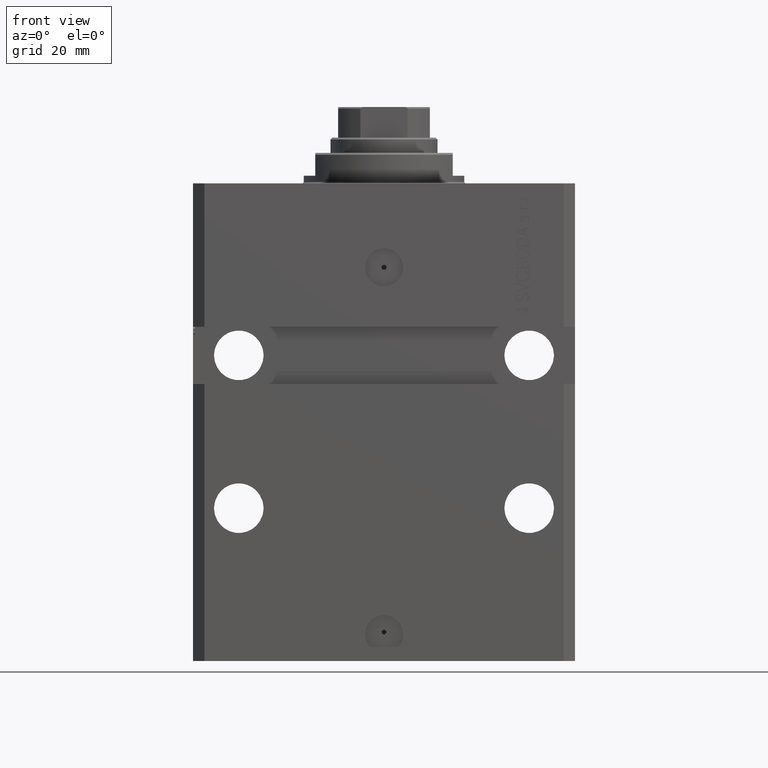
[diagram: clean part render]
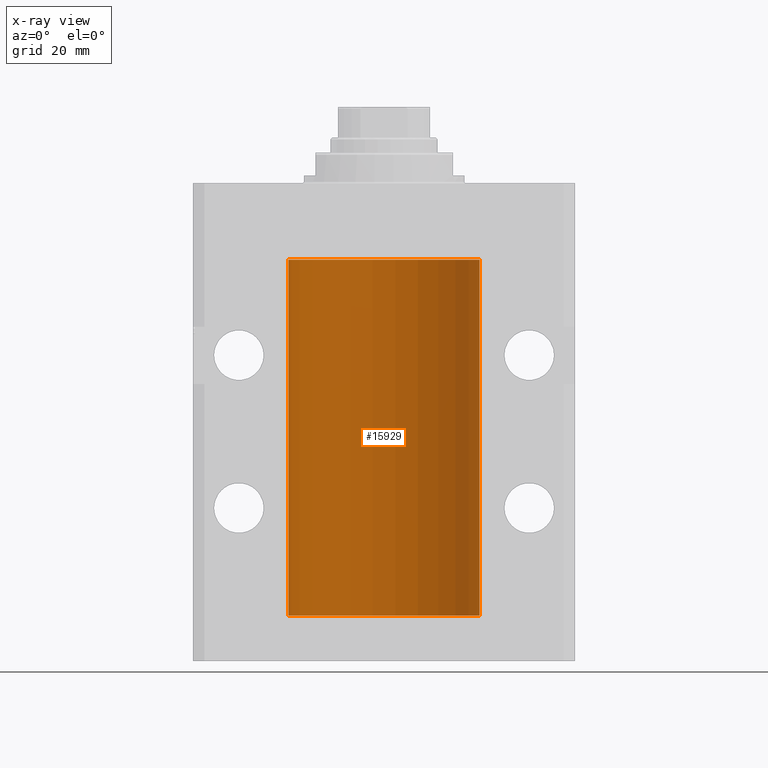
[diagram: x-ray — body ghosted, one internal face saturated and labeled with its STEP entity id]
A machine part, front view, then the same camera in x-ray: the body is ghosted and one INTERNAL B-rep face — a face not visible from any outside direction — is saturated and labeled: STEP entity #15929.
In plain terms, the highlighted cylindrical surface (partial cylindrical patch) has radius 25 mm, axis along (0, 0, 1).
Its self-contained STEP definition (entity closure, byte-faithful):
#383 = DIRECTION ( 'NONE',  ( 1.000000000000000000, 0.000000000000000000, 0.000000000000000000 ) ) ;
#386 = VECTOR ( 'NONE', #2446, 1000.000000000000000 ) ;
#418 = ORIENTED_EDGE ( 'NONE', *, *, #6431, .T. ) ;
#796 = DIRECTION ( 'NONE',  ( -0.000000000000000000, -0.000000000000000000, 1.000000000000000000 ) ) ;
#1643 = CARTESIAN_POINT ( 'NONE',  ( -24.99812965334069759, 0.3150303239408709932, -109.9540190183167852 ) ) ;
#2097 = CARTESIAN_POINT ( 'NONE',  ( -24.99218483271614843, 0.6250578298876445782, -110.6628443277814426 ) ) ;
#2446 = DIRECTION ( 'NONE',  ( -0.000000000000000000, -0.000000000000000000, 1.000000000000000000 ) ) ;
#2858 = CARTESIAN_POINT ( 'NONE',  ( -24.99812965334069403, 0.3150303239408847600, -24.45401901831676383 ) ) ;
#4022 = CIRCLE ( 'NONE', #32564, 25.00000000000000000 ) ;
#4046 = CARTESIAN_POINT ( 'NONE',  ( 0.000000000000000000, 0.000000000000000000, -20.00000000000000355 ) ) ;
#4861 = CARTESIAN_POINT ( 'NONE',  ( -24.99405295648007908, 0.5573304927633258021, -110.1734883293366920 ) ) ;
#5092 = CARTESIAN_POINT ( 'NONE',  ( -24.99402840204668408, 0.5587119681668493154, -110.8251155587110475 ) ) ;
#5285 = EDGE_CURVE ( 'NONE', #26830, #17656, #12126, .T. ) ;
#6431 = EDGE_CURVE ( 'NONE', #25672, #15883, #19362, .T. ) ;
#6741 = DIRECTION ( 'NONE',  ( -0.000000000000000000, -0.000000000000000000, 1.000000000000000000 ) ) ;
#7263 = DIRECTION ( 'NONE',  ( 0.000000000000000000, 0.000000000000000000, 1.000000000000000000 ) ) ;
#7848 = EDGE_CURVE ( 'NONE', #17267, #31472, #4022, .T. ) ;
#7895 = CARTESIAN_POINT ( 'NONE',  ( 0.000000000000000000, 0.000000000000000000, -113.0999999999999943 ) ) ;
#8280 = DIRECTION ( 'NONE',  ( -0.000000000000000000, -0.000000000000000000, 1.000000000000000000 ) ) ;
#8302 = CARTESIAN_POINT ( 'NONE',  ( -24.99957903978828000, 0.1636401650351726467, -109.8912625904798546 ) ) ;
#8329 = FACE_OUTER_BOUND ( 'NONE', #19092, .T. ) ;
#8682 = VECTOR ( 'NONE', #6741, 1000.000000000000000 ) ;
#8754 = CARTESIAN_POINT ( 'NONE',  ( -24.99218772708281122, 0.6249420913990271220, -110.3367120696675414 ) ) ;
#10408 = DIRECTION ( 'NONE',  ( 0.000000000000000000, 0.000000000000000000, 1.000000000000000000 ) ) ;
#10417 = CARTESIAN_POINT ( 'NONE',  ( -25.00000000000000000, 3.061616997868383043E-15, -113.0999999999999943 ) ) ;
#10833 = ORIENTED_EDGE ( 'NONE', *, *, #18457, .T. ) ;
#11859 = LINE ( 'NONE', #19649, #386 ) ;
#12126 = LINE ( 'NONE', #32634, #31847 ) ;
#12708 = CARTESIAN_POINT ( 'NONE',  ( -24.99218483271614843, 0.6250578298876515726, -25.16284432778144975 ) ) ;
#13176 = CARTESIAN_POINT ( 'NONE',  ( -24.99815474281801997, 0.3253832813992120210, -25.55855609393753269 ) ) ;
#14787 = DIRECTION ( 'NONE',  ( 1.000000000000000000, 0.000000000000000000, 0.000000000000000000 ) ) ;
#14999 = AXIS2_PLACEMENT_3D ( 'NONE', #4046, #7263, #383 ) ;
#15883 = VERTEX_POINT ( 'NONE', #40033 ) ;
#15929 = ADVANCED_FACE ( 'NONE', ( #8329 ), #18882, .F. ) ;
#16382 = CARTESIAN_POINT ( 'NONE',  ( -24.99402840204668408, 0.5587119681668532012, -25.32511555871104747 ) ) ;
#16841 = CARTESIAN_POINT ( 'NONE',  ( -25.00000000000000000, 3.061616997868383043E-15, -113.0999999999999943 ) ) ;
#16845 = CARTESIAN_POINT ( 'NONE',  ( -24.99218772708281477, 0.6249420913990341164, -24.83671206966754852 ) ) ;
#17267 = VERTEX_POINT ( 'NONE', #35487 ) ;
#17656 = VERTEX_POINT ( 'NONE', #34868 ) ;
#18457 = EDGE_CURVE ( 'NONE', #26830, #22566, #26804, .T. ) ;
#18882 = CYLINDRICAL_SURFACE ( 'NONE', #43049, 25.00000000000000000 ) ;
#19080 = CARTESIAN_POINT ( 'NONE',  ( -24.99999999999998579, 0.1631672031814571655, -111.1249999999998153 ) ) ;
#19092 = EDGE_LOOP ( 'NONE', ( #42264, #35273, #24810, #418, #34647, #24344, #25725, #10833 ) ) ;
#19362 = CIRCLE ( 'NONE', #14999, 25.00000000000000000 ) ;
#19600 = CARTESIAN_POINT ( 'NONE',  ( -24.99711159039964414, 0.3843660423108813950, -24.50046193055078803 ) ) ;
#19649 = CARTESIAN_POINT ( 'NONE',  ( -25.00000000000000000, 3.061616997868383043E-15, -113.0999999999999943 ) ) ;
#19837 = CARTESIAN_POINT ( 'NONE',  ( -24.99405295648008263, 0.5573304927633336847, -24.67348832933669200 ) ) ;
#19986 = EDGE_CURVE ( 'NONE', #31472, #22566, #34787, .T. ) ;
#21524 = B_SPLINE_CURVE_WITH_KNOTS ( 'NONE', 3,
 ( #23739, #44663, #23519, #2858, #19600, #19837, #16845, #12708, #16382, #13176, #33648, #30885 ),
 .UNSPECIFIED., .F., .F.,
 ( 4, 2, 2, 2, 2, 4 ),
 ( 4.396951630244787669E-19, 0.0002442639708601663379, 0.0004885279417203322420, 0.0009770558834406712061, 0.001465583825161009953, 0.001954111766881348917 ),
 .UNSPECIFIED. ) ;
#22259 = DIRECTION ( 'NONE',  ( -0.000000000000000000, -0.000000000000000000, 1.000000000000000000 ) ) ;
#22566 = VERTEX_POINT ( 'NONE', #26058 ) ;
#23519 = CARTESIAN_POINT ( 'NONE',  ( -24.99957903978827289, 0.1636401650351867743, -24.39126259047981904 ) ) ;
#23739 = CARTESIAN_POINT ( 'NONE',  ( -25.00000000000000000, -9.603917560234690571E-15, -24.37500000000000000 ) ) ;
#24344 = ORIENTED_EDGE ( 'NONE', *, *, #42249, .T. ) ;
#24810 = ORIENTED_EDGE ( 'NONE', *, *, #27511, .T. ) ;
#25672 = VERTEX_POINT ( 'NONE', #41412 ) ;
#25725 = ORIENTED_EDGE ( 'NONE', *, *, #5285, .F. ) ;
#26058 = CARTESIAN_POINT ( 'NONE',  ( -25.00000000000008171, 3.517566575222595158E-13, -111.1250000000032827 ) ) ;
#26804 = B_SPLINE_CURVE_WITH_KNOTS ( 'NONE', 3,
 ( #39783, #32899, #8302, #1643, #32678, #4861, #8754, #2097, #5092, #43904, #19080, #33126 ),
 .UNSPECIFIED., .F., .F.,
 ( 4, 2, 2, 2, 2, 4 ),
 ( 1.767227884924492832E-18, 0.0002442639708601802699, 0.0004885279417203586966, 0.0009770558834406861681, 0.001465583825161013640, 0.001954111766881341111 ),
 .UNSPECIFIED. ) ;
#26830 = VERTEX_POINT ( 'NONE', #37779 ) ;
#27511 = EDGE_CURVE ( 'NONE', #17267, #25672, #28782, .T. ) ;
#28118 = DIRECTION ( 'NONE',  ( 1.000000000000000000, 0.000000000000000000, 0.000000000000000000 ) ) ;
#28782 = LINE ( 'NONE', #43222, #31541 ) ;
#30868 = EDGE_CURVE ( 'NONE', #35889, #15883, #11859, .T. ) ;
#30885 = CARTESIAN_POINT ( 'NONE',  ( -25.00000000000008171, 3.517566451145503275E-13, -25.62500000000326850 ) ) ;
#31366 = CARTESIAN_POINT ( 'NONE',  ( -25.00000000000000000, -9.603917560234690571E-15, -24.37500000000000000 ) ) ;
#31472 = VERTEX_POINT ( 'NONE', #10417 ) ;
#31541 = VECTOR ( 'NONE', #8280, 1000.000000000000000 ) ;
#31847 = VECTOR ( 'NONE', #22259, 1000.000000000000000 ) ;
#32564 = AXIS2_PLACEMENT_3D ( 'NONE', #41899, #10408, #28118 ) ;
#32634 = CARTESIAN_POINT ( 'NONE',  ( -25.00000000000000000, 3.061616997868383043E-15, -113.0999999999999943 ) ) ;
#32678 = CARTESIAN_POINT ( 'NONE',  ( -24.99711159039963704, 0.3843660423108738455, -110.0004619305507561 ) ) ;
#32899 = CARTESIAN_POINT ( 'NONE',  ( -25.00000000000000000, 0.08259386895069686929, -109.8749999999999574 ) ) ;
#33126 = CARTESIAN_POINT ( 'NONE',  ( -25.00000000000008171, 3.517566575222595158E-13, -111.1250000000032827 ) ) ;
#33648 = CARTESIAN_POINT ( 'NONE',  ( -24.99999999999998934, 0.1631672031814573320, -25.62499999999985079 ) ) ;
#34647 = ORIENTED_EDGE ( 'NONE', *, *, #30868, .F. ) ;
#34787 = LINE ( 'NONE', #16841, #8682 ) ;
#34868 = CARTESIAN_POINT ( 'NONE',  ( -25.00000000000008171, 3.517566451145503275E-13, -25.62500000000326850 ) ) ;
#35273 = ORIENTED_EDGE ( 'NONE', *, *, #7848, .F. ) ;
#35487 = CARTESIAN_POINT ( 'NONE',  ( 25.00000000000000000, 0.000000000000000000, -113.0999999999999943 ) ) ;
#35889 = VERTEX_POINT ( 'NONE', #31366 ) ;
#37779 = CARTESIAN_POINT ( 'NONE',  ( -25.00000000000000000, -2.540720905424995806E-14, -109.8750000000000000 ) ) ;
#39783 = CARTESIAN_POINT ( 'NONE',  ( -25.00000000000000000, -2.540720905424995806E-14, -109.8750000000000000 ) ) ;
#40033 = CARTESIAN_POINT ( 'NONE',  ( -25.00000000000000000, 3.061616997868383043E-15, -20.00000000000000355 ) ) ;
#41412 = CARTESIAN_POINT ( 'NONE',  ( 25.00000000000000000, 0.000000000000000000, -20.00000000000000355 ) ) ;
#41899 = CARTESIAN_POINT ( 'NONE',  ( 0.000000000000000000, 0.000000000000000000, -113.0999999999999943 ) ) ;
#42249 = EDGE_CURVE ( 'NONE', #35889, #17656, #21524, .T. ) ;
#42264 = ORIENTED_EDGE ( 'NONE', *, *, #19986, .F. ) ;
#43049 = AXIS2_PLACEMENT_3D ( 'NONE', #7895, #796, #14787 ) ;
#43222 = CARTESIAN_POINT ( 'NONE',  ( 25.00000000000000000, 0.000000000000000000, -113.0999999999999943 ) ) ;
#43904 = CARTESIAN_POINT ( 'NONE',  ( -24.99815474281802352, 0.3253832813992116324, -111.0585560939375114 ) ) ;
#44663 = CARTESIAN_POINT ( 'NONE',  ( -25.00000000000001421, 0.08259386895071110790, -24.37500000000000000 ) ) ;